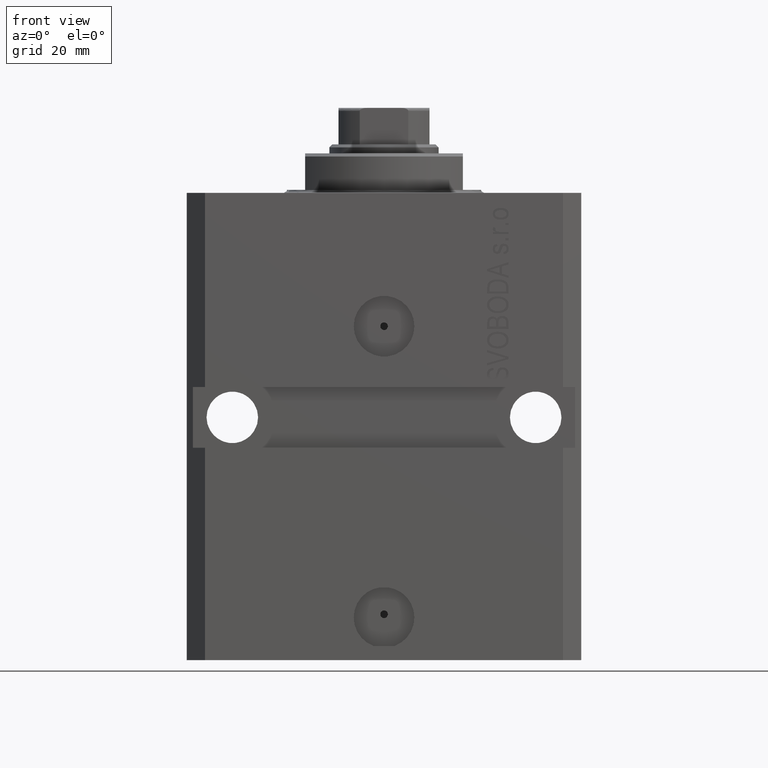
[diagram: clean part render]
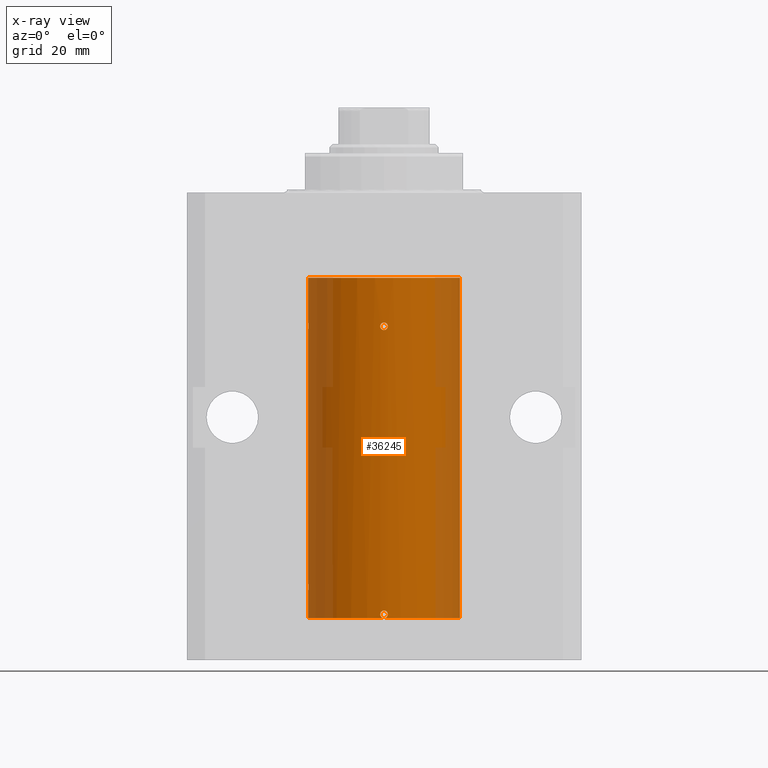
[diagram: x-ray — body ghosted, one internal face saturated and labeled with its STEP entity id]
A machine part, front view, then the same camera in x-ray: the body is ghosted and one INTERNAL B-rep face — a face not visible from any outside direction — is saturated and labeled: STEP entity #36245.
In plain terms, the highlighted cylindrical surface (partial cylindrical patch) has radius 12.5 mm, axis along (0, 0, 1).
Its self-contained STEP definition (entity closure, byte-faithful):
#134 = B_SPLINE_CURVE_WITH_KNOTS ( 'NONE', 3,
 ( #36851, #33468, #16831, #9650, #6731, #13236, #34134, #44242, #44025, #16395, #6064, #13018 ),
 .UNSPECIFIED., .F., .F.,
 ( 4, 2, 2, 2, 2, 4 ),
 ( 0.0009773924225144256777, 0.001221692871650375710, 0.001465993320786325958, 0.001954594219058255079, 0.002443195117330184199, 0.002931796015602113753 ),
 .UNSPECIFIED. ) ;
#1405 = CARTESIAN_POINT ( 'NONE',  ( -12.50000000000017941, 3.883381646606358354E-13, -22.62500000000358824 ) ) ;
#1973 = CARTESIAN_POINT ( 'NONE',  ( 0.5573988467447082984, -12.48809900631781034, -69.80140147935480854 ) ) ;
#1987 = CARTESIAN_POINT ( 'NONE',  ( -0.6250000000001363354, -12.48436522214885258, -22.16313892819009013 ) ) ;
#2090 = EDGE_CURVE ( 'NONE', #37503, #42111, #22350, .T. ) ;
#2342 = ORIENTED_EDGE ( 'NONE', *, *, #41864, .F. ) ;
#2651 = CARTESIAN_POINT ( 'NONE',  ( -12.50000000000017941, 3.883381774819353300E-13, -65.62500000000359535 ) ) ;
#2662 = CARTESIAN_POINT ( 'NONE',  ( -12.50000000000000178, -0.1651708725692886126, -21.37499999999999645 ) ) ;
#2669 = VERTEX_POINT ( 'NONE', #18147 ) ;
#2877 = CARTESIAN_POINT ( 'NONE',  ( -0.1654228519529012675, -12.49999318979582874, -22.62486379587040020 ) ) ;
#3326 = VERTEX_POINT ( 'NONE', #14670 ) ;
#3580 = CARTESIAN_POINT ( 'NONE',  ( 12.50000000000000000, 0.000000000000000000, -70.09999999999999432 ) ) ;
#3998 = ORIENTED_EDGE ( 'NONE', *, *, #13743, .T. ) ;
#4412 = DIRECTION ( 'NONE',  ( 0.000000000000000000, 0.000000000000000000, 1.000000000000000000 ) ) ;
#4413 = CARTESIAN_POINT ( 'NONE',  ( 0.000000000000000000, 0.000000000000000000, -13.99999999999999822 ) ) ;
#4630 = CARTESIAN_POINT ( 'NONE',  ( 0.000000000000000000, 0.000000000000000000, -70.09999999999999432 ) ) ;
#4779 = CARTESIAN_POINT ( 'NONE',  ( 0.6087318085567836601, -12.48520854404103630, -21.83633981484414122 ) ) ;
#4881 = EDGE_LOOP ( 'NONE', ( #15599, #3998, #7610, #42511, #23189, #20723, #7320, #25598, #2342, #39136, #43769, #17565 ) ) ;
#5445 = EDGE_CURVE ( 'NONE', #13100, #36200, #42578, .T. ) ;
#6026 = CARTESIAN_POINT ( 'NONE',  ( -12.50000000000000178, -0.1631389274720966009, -22.62500000000016698 ) ) ;
#6064 = CARTESIAN_POINT ( 'NONE',  ( -0.6250000000000027756, -12.48436522214886502, -69.31002761350272579 ) ) ;
#6189 = EDGE_CURVE ( 'NONE', #3326, #2669, #39289, .T. ) ;
#6254 = CARTESIAN_POINT ( 'NONE',  ( -12.49627279065598628, -0.3263143231498885077, -22.55740725890368736 ) ) ;
#6532 = AXIS2_PLACEMENT_3D ( 'NONE', #4413, #27791, #24636 ) ;
#6731 = CARTESIAN_POINT ( 'NONE',  ( 0.5002336959535146343, -12.49012317397092886, -69.09133113277157179 ) ) ;
#7320 = ORIENTED_EDGE ( 'NONE', *, *, #16642, .T. ) ;
#7610 = ORIENTED_EDGE ( 'NONE', *, *, #18821, .T. ) ;
#8053 = CARTESIAN_POINT ( 'NONE',  ( 12.50000000000000000, 0.000000000000000000, -13.99999999999999822 ) ) ;
#8937 = CARTESIAN_POINT ( 'NONE',  ( -12.49625500642808262, -0.3269795983093126690, -64.44293326880233508 ) ) ;
#9016 = CARTESIAN_POINT ( 'NONE',  ( -0.5585674314229008841, -12.48806005752685344, -21.67463197640445571 ) ) ;
#9206 = CARTESIAN_POINT ( 'NONE',  ( -0.6250000000000026645, -12.48436522214885969, -69.63984350486184383 ) ) ;
#9650 = CARTESIAN_POINT ( 'NONE',  ( 0.5460961315382516501, -12.48810487413754444, -69.16017824283937898 ) ) ;
#9825 = CARTESIAN_POINT ( 'NONE',  ( -12.50000000000000178, -0.1651708725692960789, -64.37500000000000000 ) ) ;
#10722 = CARTESIAN_POINT ( 'NONE',  ( -0.6250000000036063375, -12.48436522214868383, -21.99999999999969447 ) ) ;
#11220 = EDGE_LOOP ( 'NONE', ( #24762, #23768 ) ) ;
#11833 = VERTEX_POINT ( 'NONE', #12438 ) ;
#12290 = CARTESIAN_POINT ( 'NONE',  ( 0.6250000000080512264, -12.48436522214846001, -69.47499999999922693 ) ) ;
#12438 = CARTESIAN_POINT ( 'NONE',  ( 12.50000000000000000, 0.000000000000000000, -70.09999999999999432 ) ) ;
#12971 = CARTESIAN_POINT ( 'NONE',  ( 0.3261918319691095580, -12.49627709975190015, -22.55752837903201424 ) ) ;
#13018 = CARTESIAN_POINT ( 'NONE',  ( -0.6250000000000025535, -12.48436522214886324, -69.47499999999999432 ) ) ;
#13100 = VERTEX_POINT ( 'NONE', #27234 ) ;
#13201 = CARTESIAN_POINT ( 'NONE',  ( -12.48809300548636081, -0.5575284115737433321, -21.67380822970859811 ) ) ;
#13236 = CARTESIAN_POINT ( 'NONE',  ( 0.3251408448057629963, -12.49631649875954764, -68.91629557722380639 ) ) ;
#13718 = FACE_OUTER_BOUND ( 'NONE', #4881, .T. ) ;
#13743 = EDGE_CURVE ( 'NONE', #3326, #39958, #15354, .T. ) ;
#13897 = DIRECTION ( 'NONE',  ( -0.000000000000000000, -0.000000000000000000, 1.000000000000000000 ) ) ;
#14219 = CARTESIAN_POINT ( 'NONE',  ( 0.4995290477189069378, -12.49014813577965732, -21.61562461405073421 ) ) ;
#14653 = CARTESIAN_POINT ( 'NONE',  ( 0.1633100384313375397, -12.49999709136798032, -21.37505817264410979 ) ) ;
#14670 = CARTESIAN_POINT ( 'NONE',  ( -12.50000000000000000, 1.530808498934191521E-15, -70.09999999999999432 ) ) ;
#14875 = CARTESIAN_POINT ( 'NONE',  ( -0.3834811789276724170, -12.49425278195415423, -21.49962372461870785 ) ) ;
#15099 = CARTESIAN_POINT ( 'NONE',  ( -0.6250000000036063375, -12.48436522214868383, -21.99999999999969447 ) ) ;
#15106 = CARTESIAN_POINT ( 'NONE',  ( -12.50000000000017941, 3.883381774819353300E-13, -65.62500000000359535 ) ) ;
#15354 = LINE ( 'NONE', #29068, #31549 ) ;
#15599 = ORIENTED_EDGE ( 'NONE', *, *, #6189, .F. ) ;
#16130 = CARTESIAN_POINT ( 'NONE',  ( -12.50000000000017941, 3.883381646606358354E-13, -22.62500000000358824 ) ) ;
#16292 = VECTOR ( 'NONE', #22566, 1000.000000000000000 ) ;
#16347 = CARTESIAN_POINT ( 'NONE',  ( -12.48809300548636081, -0.5575284115737590973, -64.67380822970859811 ) ) ;
#16389 = EDGE_CURVE ( 'NONE', #11833, #33150, #35027, .T. ) ;
#16395 = CARTESIAN_POINT ( 'NONE',  ( -0.5571821530518563659, -12.48810851326189031, -69.14827784464195304 ) ) ;
#16446 = CARTESIAN_POINT ( 'NONE',  ( 0.000000000000000000, 0.000000000000000000, -70.09999999999999432 ) ) ;
#16613 = CARTESIAN_POINT ( 'NONE',  ( -12.50000000000000000, 1.530808498934191521E-15, -13.99999999999999822 ) ) ;
#16642 = EDGE_CURVE ( 'NONE', #42111, #33150, #39576, .T. ) ;
#16831 = CARTESIAN_POINT ( 'NONE',  ( 0.6087772866342635592, -12.48520622767670574, -69.31152541805840883 ) ) ;
#17093 = DIRECTION ( 'NONE',  ( 1.000000000000000000, 0.000000000000000000, 0.000000000000000000 ) ) ;
#17565 = ORIENTED_EDGE ( 'NONE', *, *, #28639, .T. ) ;
#18028 = CARTESIAN_POINT ( 'NONE',  ( 0.5459720203952235229, -12.48811039973180748, -21.68495456851491454 ) ) ;
#18072 = B_SPLINE_CURVE_WITH_KNOTS ( 'NONE', 3,
 ( #16130, #6026, #6254, #43990, #19951, #33432, #13201, #29846, #2662, #32982 ),
 .UNSPECIFIED., .F., .F.,
 ( 4, 2, 2, 2, 4 ),
 ( 0.001954339881912776130, 0.002442813509249222061, 0.002931287136585667558, 0.003419760763922113488, 0.003908234391258559419 ),
 .UNSPECIFIED. ) ;
#18147 = CARTESIAN_POINT ( 'NONE',  ( 1.470104640658484994E-15, -12.50000000000000000, -70.09999999999999432 ) ) ;
#18252 = CARTESIAN_POINT ( 'NONE',  ( -0.3146137485037712733, -12.49626935132541306, -21.45378489701016633 ) ) ;
#18330 = DIRECTION ( 'NONE',  ( 1.000000000000000000, 0.000000000000000000, 0.000000000000000000 ) ) ;
#18410 = B_SPLINE_CURVE_WITH_KNOTS ( 'NONE', 3,
 ( #2651, #19712, #19938, #26907, #43761, #40620, #16347, #8937, #9825, #37258 ),
 .UNSPECIFIED., .F., .F.,
 ( 4, 2, 2, 2, 4 ),
 ( 0.001954339881912786538, 0.002442813509249238107, 0.002931287136585690109, 0.003419760763922141678, 0.003908234391258593246 ),
 .UNSPECIFIED. ) ;
#18510 = DIRECTION ( 'NONE',  ( -0.000000000000000000, -0.000000000000000000, 1.000000000000000000 ) ) ;
#18821 = EDGE_CURVE ( 'NONE', #39958, #13100, #18410, .T. ) ;
#19038 = CARTESIAN_POINT ( 'NONE',  ( 0.3151108292487665996, -12.49625698805480845, -70.02093695688176922 ) ) ;
#19712 = CARTESIAN_POINT ( 'NONE',  ( -12.50000000000000178, -0.1631389274720982940, -65.62500000000014211 ) ) ;
#19938 = CARTESIAN_POINT ( 'NONE',  ( -12.49627279065598628, -0.3263143231498935593, -65.55740725890372289 ) ) ;
#19951 = CARTESIAN_POINT ( 'NONE',  ( -12.48437204107163190, -0.6248637920779505084, -22.16542285240648624 ) ) ;
#19984 = CARTESIAN_POINT ( 'NONE',  ( -0.3268155536464903976, -12.49625914831439921, -70.03213681627768494 ) ) ;
#20033 = DIRECTION ( 'NONE',  ( 1.000000000000000000, 0.000000000000000000, 0.000000000000000000 ) ) ;
#20723 = ORIENTED_EDGE ( 'NONE', *, *, #2090, .T. ) ;
#21366 = B_SPLINE_CURVE_WITH_KNOTS ( 'NONE', 3,
 ( #40379, #43743, #36124, #19038, #32737, #1973, #43074, #12290 ),
 .UNSPECIFIED., .F., .F.,
 ( 4, 2, 2, 4 ),
 ( 0.000000000000000000, 0.0002443481056286064194, 0.0004886962112572128389, 0.0009773924225144256777 ),
 .UNSPECIFIED. ) ;
#21628 = CARTESIAN_POINT ( 'NONE',  ( -0.08132084456756884239, -12.50000145133807550, -21.37497097323671014 ) ) ;
#22339 = VECTOR ( 'NONE', #13897, 1000.000000000000000 ) ;
#22350 = LINE ( 'NONE', #29529, #29132 ) ;
#22566 = DIRECTION ( 'NONE',  ( -0.000000000000000000, -0.000000000000000000, 1.000000000000000000 ) ) ;
#23189 = ORIENTED_EDGE ( 'NONE', *, *, #23705, .T. ) ;
#23359 = CARTESIAN_POINT ( 'NONE',  ( -0.6250000000000025535, -12.48436522214886324, -69.47499999999999432 ) ) ;
#23623 = CARTESIAN_POINT ( 'NONE',  ( 0.000000000000000000, 0.000000000000000000, -70.09999999999999432 ) ) ;
#23705 = EDGE_CURVE ( 'NONE', #36200, #37503, #18072, .T. ) ;
#23768 = ORIENTED_EDGE ( 'NONE', *, *, #37865, .T. ) ;
#24187 = AXIS2_PLACEMENT_3D ( 'NONE', #23623, #37339, #17093 ) ;
#24636 = DIRECTION ( 'NONE',  ( 1.000000000000000000, 0.000000000000000000, 0.000000000000000000 ) ) ;
#24684 = CARTESIAN_POINT ( 'NONE',  ( 0.6250000000080512264, -12.48436522214846001, -69.47499999999922693 ) ) ;
#24762 = ORIENTED_EDGE ( 'NONE', *, *, #36076, .T. ) ;
#25598 = ORIENTED_EDGE ( 'NONE', *, *, #16389, .F. ) ;
#26364 = CIRCLE ( 'NONE', #32103, 12.50000000000000000 ) ;
#26410 = CARTESIAN_POINT ( 'NONE',  ( -0.6250000000000025535, -12.48436522214886324, -69.47499999999999432 ) ) ;
#26469 = CARTESIAN_POINT ( 'NONE',  ( -0.3270961104548176790, -12.49625086038168931, -22.55694885317108600 ) ) ;
#26521 = CARTESIAN_POINT ( 'NONE',  ( -12.50000000000000000, -2.089494013101375120E-17, -21.37499999999999645 ) ) ;
#26907 = CARTESIAN_POINT ( 'NONE',  ( -12.48811925907523879, -0.5569488909189596049, -65.32709604503179435 ) ) ;
#26967 = B_SPLINE_CURVE_WITH_KNOTS ( 'NONE', 3,
 ( #35337, #35113, #4779, #18028, #14219, #31738, #14653, #21628, #27940, #18252, #14875, #9016, #33051, #15099 ),
 .UNSPECIFIED., .F., .F.,
 ( 4, 2, 2, 2, 2, 2, 4 ),
 ( 0.000000000000000000, 0.0002442924821955120467, 0.0004885849643910240934, 0.0009771699287820408142, 0.001221462410977549283, 0.001465754893173057318, 0.001954339857564081195 ),
 .UNSPECIFIED. ) ;
#27234 = CARTESIAN_POINT ( 'NONE',  ( -12.50000000000000000, -1.053276923642966949E-14, -64.37500000000000000 ) ) ;
#27703 = VERTEX_POINT ( 'NONE', #24684 ) ;
#27791 = DIRECTION ( 'NONE',  ( 0.000000000000000000, 0.000000000000000000, 1.000000000000000000 ) ) ;
#27940 = CARTESIAN_POINT ( 'NONE',  ( -0.1632543323367347532, -12.49916307336598287, -21.39116441262433099 ) ) ;
#28574 = EDGE_CURVE ( 'NONE', #27703, #29159, #134, .T. ) ;
#28639 = EDGE_CURVE ( 'NONE', #29159, #2669, #37052, .T. ) ;
#29068 = CARTESIAN_POINT ( 'NONE',  ( -12.50000000000000000, 1.530808498934191521E-15, -70.09999999999999432 ) ) ;
#29132 = VECTOR ( 'NONE', #36061, 1000.000000000000000 ) ;
#29159 = VERTEX_POINT ( 'NONE', #26410 ) ;
#29529 = CARTESIAN_POINT ( 'NONE',  ( -12.50000000000000000, 1.530808498934191521E-15, -70.09999999999999432 ) ) ;
#29833 = CARTESIAN_POINT ( 'NONE',  ( 0.6250000000000017764, -12.48436522214886502, -22.00000000000000000 ) ) ;
#29846 = CARTESIAN_POINT ( 'NONE',  ( -12.49625500642808262, -0.3269795983092943503, -21.44293326880232087 ) ) ;
#29879 = CARTESIAN_POINT ( 'NONE',  ( -0.1650848372272839815, -12.50000000000000178, -70.10000000000000853 ) ) ;
#29915 = CYLINDRICAL_SURFACE ( 'NONE', #24187, 12.50000000000000000 ) ;
#30155 = DIRECTION ( 'NONE',  ( 0.000000000000000000, 0.000000000000000000, 1.000000000000000000 ) ) ;
#30273 = CARTESIAN_POINT ( 'NONE',  ( 0.5570667809667051440, -12.48811511264091934, -22.32697951956172844 ) ) ;
#31416 = EDGE_CURVE ( 'NONE', #2669, #27703, #21366, .T. ) ;
#31549 = VECTOR ( 'NONE', #18510, 1000.000000000000000 ) ;
#31738 = CARTESIAN_POINT ( 'NONE',  ( 0.3265259744707224576, -12.49626742995426376, -21.44268445620963348 ) ) ;
#32103 = AXIS2_PLACEMENT_3D ( 'NONE', #16446, #30155, #20033 ) ;
#32737 = CARTESIAN_POINT ( 'NONE',  ( 0.3844519291904487934, -12.49421963472024188, -69.97447303647051342 ) ) ;
#32982 = CARTESIAN_POINT ( 'NONE',  ( -12.50000000000000000, -2.089494013101375120E-17, -21.37499999999999645 ) ) ;
#33051 = CARTESIAN_POINT ( 'NONE',  ( -0.6249999999998608891, -12.48436522214887034, -21.83682388509806316 ) ) ;
#33150 = VERTEX_POINT ( 'NONE', #8053 ) ;
#33432 = CARTESIAN_POINT ( 'NONE',  ( -12.48435842450557942, -0.6251357828644855674, -21.83560799371398886 ) ) ;
#33468 = CARTESIAN_POINT ( 'NONE',  ( 0.6249999999998496758, -12.48436522214886857, -69.39345217010018985 ) ) ;
#33646 = CARTESIAN_POINT ( 'NONE',  ( -0.5574072998201419216, -12.48809731436987747, -22.32631425440896322 ) ) ;
#33691 = CARTESIAN_POINT ( 'NONE',  ( 1.470104640658484994E-15, -12.50000000000000000, -70.09999999999999432 ) ) ;
#34134 = CARTESIAN_POINT ( 'NONE',  ( 0.1629224624750973960, -12.50000332393458891, -68.84993352130271660 ) ) ;
#34544 = VERTEX_POINT ( 'NONE', #10722 ) ;
#35027 = LINE ( 'NONE', #3580, #22339 ) ;
#35113 = CARTESIAN_POINT ( 'NONE',  ( 0.6250000000000018874, -12.48436522214886324, -21.91739573630514926 ) ) ;
#35337 = CARTESIAN_POINT ( 'NONE',  ( 0.6250000000000017764, -12.48436522214886502, -22.00000000000000000 ) ) ;
#35371 = VERTEX_POINT ( 'NONE', #42507 ) ;
#36061 = DIRECTION ( 'NONE',  ( -0.000000000000000000, -0.000000000000000000, 1.000000000000000000 ) ) ;
#36076 = EDGE_CURVE ( 'NONE', #35371, #34544, #26967, .T. ) ;
#36124 = CARTESIAN_POINT ( 'NONE',  ( 0.1636982395582734229, -12.49915742890632053, -70.08372397847031721 ) ) ;
#36200 = VERTEX_POINT ( 'NONE', #1405 ) ;
#36245 = ADVANCED_FACE ( 'NONE', ( #42956, #13718 ), #29915, .F. ) ;
#36580 = CARTESIAN_POINT ( 'NONE',  ( -0.6250000000036063375, -12.48436522214868383, -21.99999999999969447 ) ) ;
#36851 = CARTESIAN_POINT ( 'NONE',  ( 0.6250000000080512264, -12.48436522214846001, -69.47499999999922693 ) ) ;
#37030 = CARTESIAN_POINT ( 'NONE',  ( 0.6250000000000018874, -12.48436522214886502, -22.16517087750612092 ) ) ;
#37052 = B_SPLINE_CURVE_WITH_KNOTS ( 'NONE', 3,
 ( #23359, #9206, #37077, #19984, #29879, #33691 ),
 .UNSPECIFIED., .F., .F.,
 ( 4, 2, 4 ),
 ( 0.002931796015602113753, 0.003420015203430352198, 0.003908234391258590644 ),
 .UNSPECIFIED. ) ;
#37077 = CARTESIAN_POINT ( 'NONE',  ( -0.5573321180046024725, -12.48810161786719242, -69.80148238604530775 ) ) ;
#37258 = CARTESIAN_POINT ( 'NONE',  ( -12.50000000000000000, -1.053276923642966949E-14, -64.37500000000000000 ) ) ;
#37339 = DIRECTION ( 'NONE',  ( -0.000000000000000000, -0.000000000000000000, 1.000000000000000000 ) ) ;
#37503 = VERTEX_POINT ( 'NONE', #26521 ) ;
#37865 = EDGE_CURVE ( 'NONE', #34544, #35371, #41839, .T. ) ;
#39136 = ORIENTED_EDGE ( 'NONE', *, *, #31416, .T. ) ;
#39289 = CIRCLE ( 'NONE', #44299, 12.50000000000000000 ) ;
#39576 = CIRCLE ( 'NONE', #6532, 12.50000000000000000 ) ;
#39956 = CARTESIAN_POINT ( 'NONE',  ( 0.1643920345763580093, -12.50000678895248107, -22.62513577909574636 ) ) ;
#39958 = VERTEX_POINT ( 'NONE', #15106 ) ;
#40379 = CARTESIAN_POINT ( 'NONE',  ( 1.470104640658484994E-15, -12.50000000000000000, -70.09999999999999432 ) ) ;
#40620 = CARTESIAN_POINT ( 'NONE',  ( -12.48435842450557942, -0.6251357828645015546, -64.83560799371397820 ) ) ;
#41839 = B_SPLINE_CURVE_WITH_KNOTS ( 'NONE', 3,
 ( #36580, #1987, #33646, #26469, #2877, #39956, #12971, #30273, #37030, #29833 ),
 .UNSPECIFIED., .F., .F.,
 ( 4, 2, 2, 2, 4 ),
 ( 0.001954339857564081195, 0.002442813476812580147, 0.002931287096061078665, 0.003419760715309577617, 0.003908234334558076568 ),
 .UNSPECIFIED. ) ;
#41864 = EDGE_CURVE ( 'NONE', #2669, #11833, #26364, .T. ) ;
#42111 = VERTEX_POINT ( 'NONE', #16613 ) ;
#42507 = CARTESIAN_POINT ( 'NONE',  ( 0.6250000000000017764, -12.48436522214886502, -22.00000000000000000 ) ) ;
#42511 = ORIENTED_EDGE ( 'NONE', *, *, #5445, .T. ) ;
#42578 = LINE ( 'NONE', #43228, #16292 ) ;
#42956 = FACE_BOUND ( 'NONE', #11220, .T. ) ;
#43074 = CARTESIAN_POINT ( 'NONE',  ( 0.6250000000003167466, -12.48436522214884725, -69.63812747540310966 ) ) ;
#43228 = CARTESIAN_POINT ( 'NONE',  ( -12.50000000000000000, 1.530808498934191521E-15, -70.09999999999999432 ) ) ;
#43743 = CARTESIAN_POINT ( 'NONE',  ( 0.08262306818364176242, -12.50000000000000000, -70.09999999999999432 ) ) ;
#43761 = CARTESIAN_POINT ( 'NONE',  ( -12.48437204107163190, -0.6248637920779611665, -65.16542285240649335 ) ) ;
#43769 = ORIENTED_EDGE ( 'NONE', *, *, #28574, .T. ) ;
#43990 = CARTESIAN_POINT ( 'NONE',  ( -12.48811925907523879, -0.5569488909189486137, -22.32709604503179079 ) ) ;
#44025 = CARTESIAN_POINT ( 'NONE',  ( -0.3266214369556185715, -12.49626442692393979, -68.91775879961872420 ) ) ;
#44242 = CARTESIAN_POINT ( 'NONE',  ( -0.1634321124498647193, -12.49999667087055499, -68.85006658259450774 ) ) ;
#44299 = AXIS2_PLACEMENT_3D ( 'NONE', #4630, #4412, #18330 ) ;